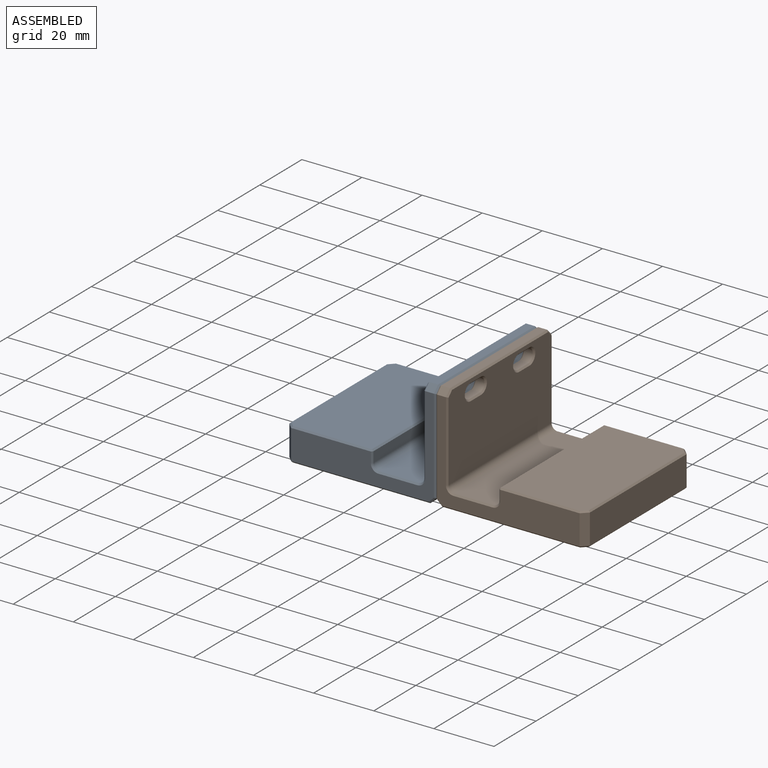
[diagram: assembled view]
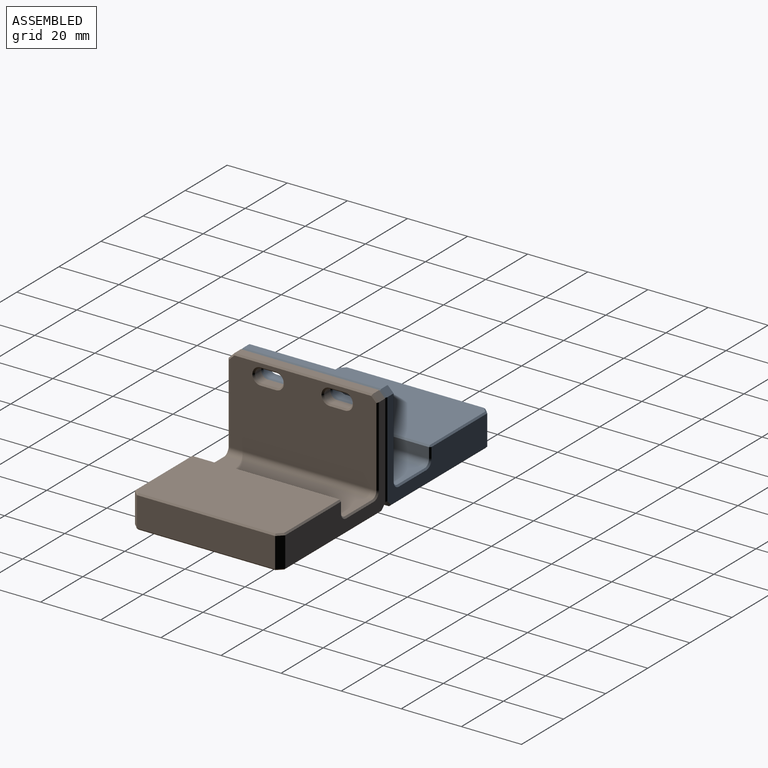
[diagram: assembled view, second angle]
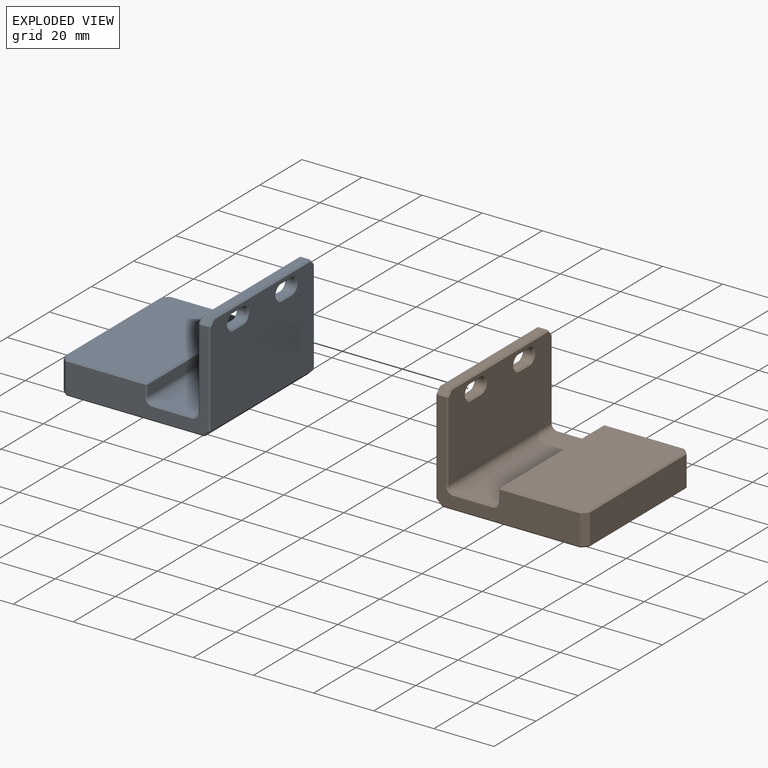
[diagram: exploded view]
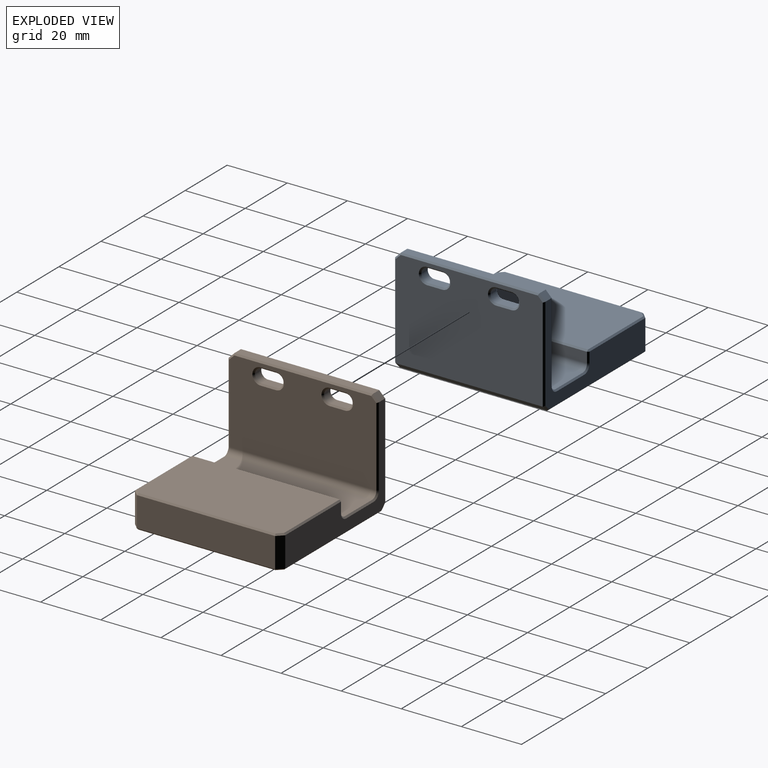
[diagram: exploded view, second angle]
ASSEMBLY  parts=2 mates=3
PART A: 74 faces, bbox 50x50x35.5 mm
  f0: plane 46x3mm, normal (0,0,1), area 138mm2, adj f21,f22,f41,f51
  f1: plane 49x28mm, normal (-1,0,0), area 1266.6mm2, adj f18,f37,f39,f41,f43,f45,f58,f59
  f2: plane 49x13mm, normal (0,0,1), area 637mm2, adj f18,f19,f32,f42
  f3: plane 49x3.5mm, normal (1,0,0), area 171.5mm2, adj f19,f26,f33,f38
  f4: plane 49x28mm, normal (0,0,1), area 1369.1mm2, adj f25,f27,f28,f31,f33,f34
  f5: plane 46x10mm, normal (-1,0,0), area 460mm2, adj f23,f24,f28,f52
  f6: plane 49x47.5mm, normal (0,0,-1), area 2324.6mm2, adj f20,f48,f50,f52,f54,f56
  f7: plane 49x33mm, normal (1,0,0), area 1511.6mm2, adj f20,f47,f49,f51,f53,f55,f62,f63
  f8: plane 47.5x33mm, normal (0,-1,0), area 437.2mm2, adj f22,f24,f26,f27,f29,f32,f35,f37
  f9: plane 47.5x33mm, normal (0,1,0), area 437.2mm2, adj f21,f23,f34,f38,f40,f42,f44,f45
  f10: cylinder r=2.25mm len=4.5mm, axis (-1,0,0), area 21.2mm2, adj f11,f13,f59,f64
  f11: plane 5x3mm, normal (0,0,1), area 15mm2, adj f10,f12,f58,f62
  f12: cylinder r=2.25mm len=4.5mm, axis (-1,0,0), area 21.2mm2, adj f11,f13,f60,f63
  f13: plane 5x3mm, normal (0,0,-1), area 15mm2, adj f10,f12,f61,f65
  f14: cylinder r=2.25mm len=4.5mm, axis (-1,0,0), area 21.2mm2, adj f15,f17,f68,f71
  f15: plane 5x3mm, normal (0,0,-1), area 15mm2, adj f14,f16,f69,f73
  f16: cylinder r=2.25mm len=4.5mm, axis (-1,0,0), area 21.2mm2, adj f15,f17,f67,f72
  f17: plane 5x3mm, normal (0,0,1), area 15mm2, adj f14,f16,f66,f70
  f18: cylinder r=2mm len=49mm, axis (0,-1,0), area 153.9mm2, adj f1,f2,f35,f44
  f19: cylinder r=2mm len=49mm, axis (0,-1,0), area 153.9mm2, adj f2,f3,f29,f40
  f20: plane 49x2mm, normal (0.71,0,-0.71), area 138.6mm2, adj f6,f7,f46,f57
  f21: plane 3x2mm, normal (0,0.71,0.71), area 8.5mm2, adj f0,f9,f43,f53
  f22: plane 3x2mm, normal (0,-0.71,0.71), area 8.5mm2, adj f0,f8,f39,f49
  f23: plane 10x2mm, normal (-0.71,0.71,0), area 28.3mm2, adj f5,f9,f31,f54
  f24: plane 10x2mm, normal (-0.71,-0.71,0), area 28.3mm2, adj f5,f8,f25,f50
  f25: plane 2.21x2.21mm, normal (-0.5,-0.5,0.71), area 1.9mm2, adj f4,f24,f27,f28
  f26: plane 3.5x0.5mm, normal (0.71,-0.71,0), area 2.5mm2, adj f3,f8,f29,f30
  f27: plane 26.5x0.5mm, normal (0,-0.71,0.71), area 18.7mm2, adj f4,f8,f25,f30
  f28: plane 46x0.5mm, normal (-0.71,0,0.71), area 32.4mm2, adj f4,f5,f25,f31
  f29: cone r=2.5mm half-angle=45deg, axis (0,-1,0), area 2.5mm2, adj f8,f19,f26,f32
  f30: plane 0.5x0.5mm, normal (0.58,-0.58,0.58), area 0.2mm2, adj f26,f27,f33
  f31: plane 2.21x2.21mm, normal (-0.5,0.5,0.71), area 1.9mm2, adj f4,f23,f28,f34
  f32: plane 13x0.5mm, normal (0,-0.71,0.71), area 9.2mm2, adj f2,f8,f29,f35
  f33: plane 49x0.5mm, normal (0.71,0,0.71), area 34.6mm2, adj f3,f4,f30,f36
  f34: plane 26.5x0.5mm, normal (0,0.71,0.71), area 18.7mm2, adj f4,f9,f31,f36
  f35: cone r=2.5mm half-angle=45deg, axis (0,-1,0), area 2.5mm2, adj f8,f18,f32,f37
  f36: plane 0.5x0.5mm, normal (0.58,0.58,0.58), area 0.2mm2, adj f33,f34,f38
  f37: plane 26.5x0.5mm, normal (-0.71,-0.71,0), area 18.7mm2, adj f1,f8,f35,f39
  f38: plane 3.5x0.5mm, normal (0.71,0.71,0), area 2.5mm2, adj f3,f9,f36,f40
  f39: plane 2.21x2.21mm, normal (-0.71,-0.5,0.5), area 1.9mm2, adj f1,f22,f37,f41
  f40: cone r=2.5mm half-angle=45deg, axis (0,1,0), area 2.5mm2, adj f9,f19,f38,f42
  f41: plane 46x0.5mm, normal (-0.71,0,0.71), area 32.4mm2, adj f0,f1,f39,f43
  f42: plane 13x0.5mm, normal (0,0.71,0.71), area 9.2mm2, adj f2,f9,f40,f44
  f43: plane 2.21x2.21mm, normal (-0.71,0.5,0.5), area 1.9mm2, adj f1,f21,f41,f45
  f44: cone r=2.5mm half-angle=45deg, axis (0,1,0), area 2.5mm2, adj f9,f18,f42,f45
  f45: plane 26.5x0.5mm, normal (-0.71,0.71,0), area 18.7mm2, adj f1,f9,f43,f44
  f46: plane 2.21x2.21mm, normal (0.5,-0.71,-0.5), area 1.9mm2, adj f8,f20,f47,f48
  f47: plane 31.5x0.5mm, normal (0.71,-0.71,0), area 22.1mm2, adj f7,f8,f46,f49
  f48: plane 46x0.5mm, normal (0,-0.71,-0.71), area 32.4mm2, adj f6,f8,f46,f50
  f49: plane 2.21x2.21mm, normal (0.71,-0.5,0.5), area 1.9mm2, adj f7,f22,f47,f51
  f50: plane 2.21x2.21mm, normal (-0.5,-0.5,-0.71), area 1.9mm2, adj f6,f24,f48,f52
  f51: plane 46x0.5mm, normal (0.71,0,0.71), area 32.4mm2, adj f0,f7,f49,f53
  f52: plane 46x0.5mm, normal (-0.71,0,-0.71), area 32.4mm2, adj f5,f6,f50,f54
  f53: plane 2.21x2.21mm, normal (0.71,0.5,0.5), area 1.9mm2, adj f7,f21,f51,f55
  f54: plane 2.21x2.21mm, normal (-0.5,0.5,-0.71), area 1.9mm2, adj f6,f23,f52,f56
  f55: plane 31.5x0.5mm, normal (0.71,0.71,0), area 22.1mm2, adj f7,f9,f53,f57
  f56: plane 46x0.5mm, normal (0,0.71,-0.71), area 32.4mm2, adj f6,f9,f54,f57
  f57: plane 2.21x2.21mm, normal (0.5,0.71,-0.5), area 1.9mm2, adj f9,f20,f55,f56
  f58: plane 5x0.5mm, normal (-0.71,0,0.71), area 3.5mm2, adj f1,f11,f59,f60
  f59: cone r=2.25mm half-angle=45deg, axis (-1,0,0), area 5.6mm2, adj f1,f10,f58,f61
  f60: cone r=2.25mm half-angle=45deg, axis (-1,0,0), area 5.6mm2, adj f1,f12,f58,f61
  f61: plane 5x0.5mm, normal (-0.71,0,-0.71), area 3.5mm2, adj f1,f13,f59,f60
  f62: plane 5x0.5mm, normal (0.71,0,0.71), area 3.5mm2, adj f7,f11,f63,f64
  f63: cone r=2.25mm half-angle=45deg, axis (1,0,0), area 5.6mm2, adj f7,f12,f62,f65
  f64: cone r=2.25mm half-angle=45deg, axis (1,0,0), area 5.6mm2, adj f7,f10,f62,f65
  f65: plane 5x0.5mm, normal (0.71,0,-0.71), area 3.5mm2, adj f7,f13,f63,f64
  f66: plane 5x0.5mm, normal (-0.71,0,0.71), area 3.5mm2, adj f1,f17,f67,f68
  f67: cone r=2.25mm half-angle=45deg, axis (-1,0,0), area 5.6mm2, adj f1,f16,f66,f69
  f68: cone r=2.25mm half-angle=45deg, axis (-1,0,0), area 5.6mm2, adj f1,f14,f66,f69
  f69: plane 5x0.5mm, normal (-0.71,0,-0.71), area 3.5mm2, adj f1,f15,f67,f68
  f70: plane 5x0.5mm, normal (0.71,0,0.71), area 3.5mm2, adj f7,f17,f71,f72
  f71: cone r=2.25mm half-angle=45deg, axis (1,0,0), area 5.6mm2, adj f7,f14,f70,f73
  f72: cone r=2.25mm half-angle=45deg, axis (1,0,0), area 5.6mm2, adj f7,f16,f70,f73
  f73: plane 5x0.5mm, normal (0.71,0,-0.71), area 3.5mm2, adj f7,f15,f71,f72
PART B: same geometry as A
PLACE A at identity fixed
PLACE B rot(axis=(0,0,1),180deg) t=(0,0,0)mm
MATE cylindrical B.f10 <-> A.f14  axis (1,0,0) through (3.5,14,-4.5)mm
MATE cylindrical A.f12 <-> B.f16  axis (-1,0,0) through (-0.5,-9,-4.5)mm
MATE planar B.f7 <-> A.f7  axis (-1,0,0) through (0,0,-17.88)mm
